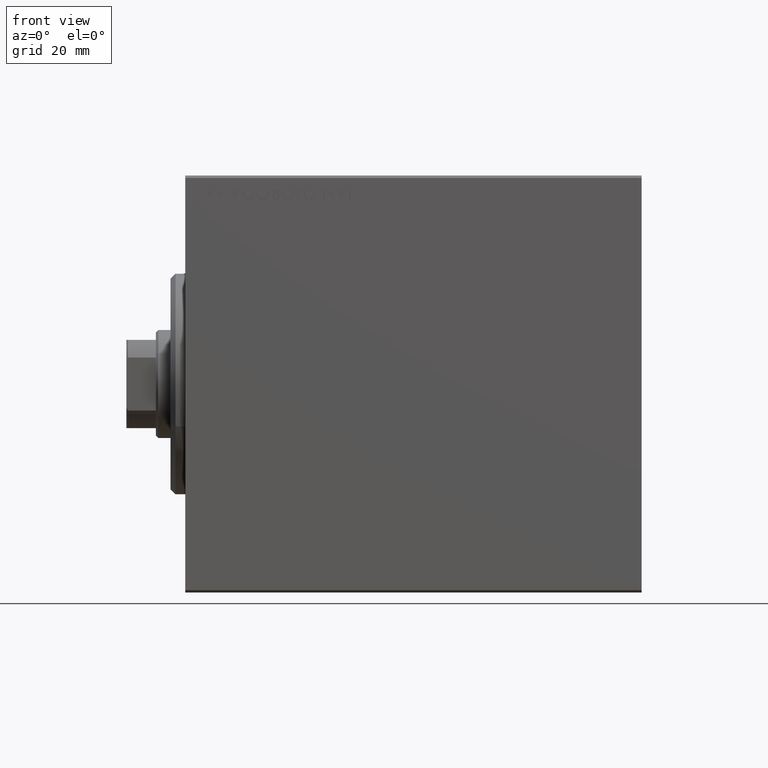
[diagram: clean part render]
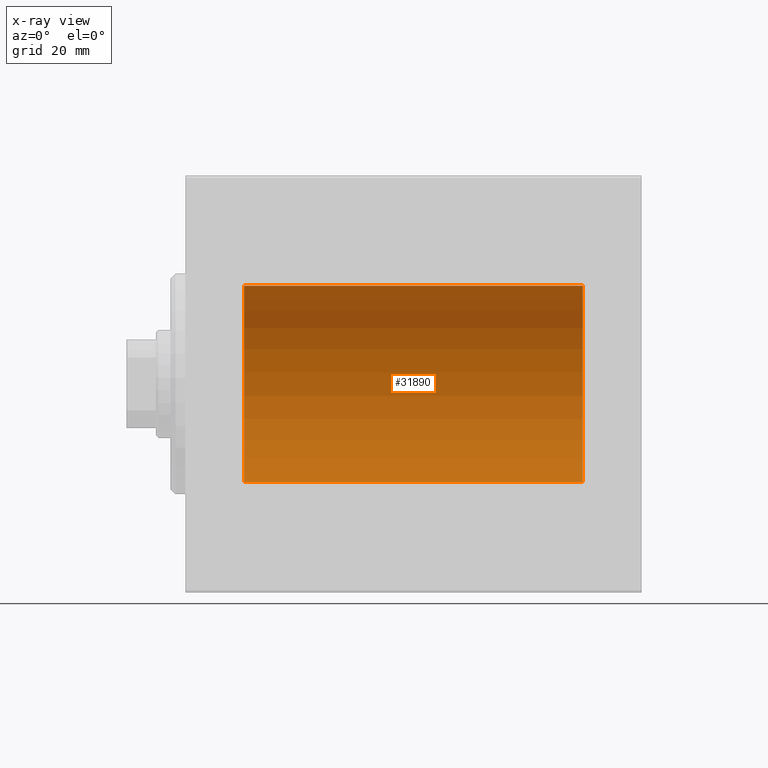
[diagram: x-ray — body ghosted, one internal face saturated and labeled with its STEP entity id]
A machine part, front view, then the same camera in x-ray: the body is ghosted and one INTERNAL B-rep face — a face not visible from any outside direction — is saturated and labeled: STEP entity #31890.
In plain terms, the highlighted cylindrical surface (partial cylindrical patch) has radius 20 mm, axis along (-1, -0, -0).
Its self-contained STEP definition (entity closure, byte-faithful):
#1748 = CIRCLE ( 'NONE', #25029, 20.00000000000000000 ) ;
#2762 = FACE_OUTER_BOUND ( 'NONE', #34275, .T. ) ;
#5437 = CARTESIAN_POINT ( 'NONE',  ( 11.99999999999999645, 0.000000000000000000, 0.000000000000000000 ) ) ;
#6348 = CARTESIAN_POINT ( 'NONE',  ( 11.99999999999999645, 0.000000000000000000, 20.00000000000000000 ) ) ;
#7413 = EDGE_CURVE ( 'NONE', #7751, #31704, #38278, .T. ) ;
#7544 = DIRECTION ( 'NONE',  ( -1.000000000000000000, -0.000000000000000000, -0.000000000000000000 ) ) ;
#7751 = VERTEX_POINT ( 'NONE', #16906 ) ;
#9625 = ORIENTED_EDGE ( 'NONE', *, *, #20436, .T. ) ;
#10631 = CARTESIAN_POINT ( 'NONE',  ( 81.00000000000000000, 0.000000000000000000, 20.00000000000000000 ) ) ;
#10784 = CIRCLE ( 'NONE', #12195, 20.00000000000000000 ) ;
#10857 = DIRECTION ( 'NONE',  ( -1.000000000000000000, -0.000000000000000000, -0.000000000000000000 ) ) ;
#12119 = VECTOR ( 'NONE', #10857, 1000.000000000000000 ) ;
#12195 = AXIS2_PLACEMENT_3D ( 'NONE', #5437, #19335, #16020 ) ;
#13535 = VERTEX_POINT ( 'NONE', #43304 ) ;
#16012 = ORIENTED_EDGE ( 'NONE', *, *, #29391, .F. ) ;
#16020 = DIRECTION ( 'NONE',  ( 0.000000000000000000, 0.000000000000000000, 1.000000000000000000 ) ) ;
#16906 = CARTESIAN_POINT ( 'NONE',  ( 81.00000000000000000, 0.000000000000000000, 20.00000000000000000 ) ) ;
#17887 = VERTEX_POINT ( 'NONE', #29150 ) ;
#17909 = VECTOR ( 'NONE', #36225, 1000.000000000000000 ) ;
#19335 = DIRECTION ( 'NONE',  ( -1.000000000000000000, 0.000000000000000000, 0.000000000000000000 ) ) ;
#19824 = LINE ( 'NONE', #33323, #17909 ) ;
#20436 = EDGE_CURVE ( 'NONE', #31704, #17887, #10784, .T. ) ;
#21005 = DIRECTION ( 'NONE',  ( 0.000000000000000000, 0.000000000000000000, 1.000000000000000000 ) ) ;
#25029 = AXIS2_PLACEMENT_3D ( 'NONE', #25048, #42298, #35223 ) ;
#25048 = CARTESIAN_POINT ( 'NONE',  ( 81.00000000000000000, 0.000000000000000000, 0.000000000000000000 ) ) ;
#25786 = AXIS2_PLACEMENT_3D ( 'NONE', #41144, #7544, #21005 ) ;
#26621 = CYLINDRICAL_SURFACE ( 'NONE', #25786, 20.00000000000000000 ) ;
#28039 = EDGE_CURVE ( 'NONE', #13535, #17887, #19824, .T. ) ;
#29150 = CARTESIAN_POINT ( 'NONE',  ( 11.99999999999999645, 2.449293598294706513E-15, -20.00000000000000000 ) ) ;
#29391 = EDGE_CURVE ( 'NONE', #7751, #13535, #1748, .T. ) ;
#31704 = VERTEX_POINT ( 'NONE', #6348 ) ;
#31890 = ADVANCED_FACE ( 'NONE', ( #2762 ), #26621, .F. ) ;
#32727 = ORIENTED_EDGE ( 'NONE', *, *, #28039, .F. ) ;
#33323 = CARTESIAN_POINT ( 'NONE',  ( 81.00000000000000000, 2.449293598294706513E-15, -20.00000000000000000 ) ) ;
#34275 = EDGE_LOOP ( 'NONE', ( #32727, #16012, #38156, #9625 ) ) ;
#35223 = DIRECTION ( 'NONE',  ( 0.000000000000000000, 0.000000000000000000, 1.000000000000000000 ) ) ;
#36225 = DIRECTION ( 'NONE',  ( -1.000000000000000000, -0.000000000000000000, -0.000000000000000000 ) ) ;
#38156 = ORIENTED_EDGE ( 'NONE', *, *, #7413, .T. ) ;
#38278 = LINE ( 'NONE', #10631, #12119 ) ;
#41144 = CARTESIAN_POINT ( 'NONE',  ( 81.00000000000000000, 0.000000000000000000, 0.000000000000000000 ) ) ;
#42298 = DIRECTION ( 'NONE',  ( -1.000000000000000000, 0.000000000000000000, 0.000000000000000000 ) ) ;
#43304 = CARTESIAN_POINT ( 'NONE',  ( 81.00000000000000000, 2.449293598294706513E-15, -20.00000000000000000 ) ) ;